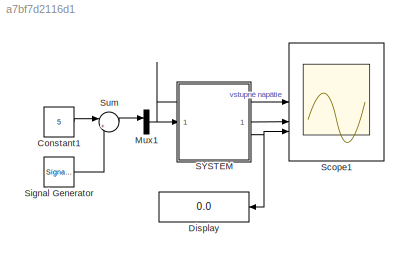
MODEL slx_a7bf7d2116d1
KIND model
CONFIG AbsTol = auto
CONFIG EnableMultiTasking = on
CONFIG FixedStep = auto
CONFIG MaxStep = auto
CONFIG MinStep = auto
CONFIG RelTol = 1e-3
CONFIG SampleTimeConstraint = Unconstrained
CONFIG SolverName = ode45
CONFIG StartTime = 0.0
CONFIG StopTime = 60
BLOCK [Constant] Constant1
  Value = 5
BLOCK [Display] Display
  Decimation = 1
  NameLocation = top
BLOCK [Mux] Mux1
  DisplayOption = bar
  Inputs = 1
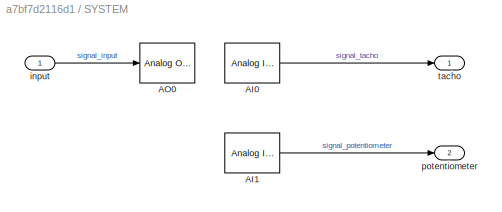
BLOCK [SubSystem] SYSTEM
BLOCK [Reference] SYSTEM/AI0  REF=sldrtlib/Analog Input
  AttributesFormatString = Advantech\nPCI-1711 [auto]
  SourceBlock = sldrtlib/Analog Input
  SourceType = Simulink Desktop Real-Time Analog Input
BLOCK [Reference] SYSTEM/AI1  REF=sldrtlib/Analog Input
  AttributesFormatString = Advantech\nPCI-1711 [auto]
  SourceBlock = sldrtlib/Analog Input
  SourceType = Simulink Desktop Real-Time Analog Input
BLOCK [Reference] SYSTEM/AO0  REF=sldrtlib/Analog Output
  AttributesFormatString = Advantech\nPCI-1711 [auto]
  SourceBlock = sldrtlib/Analog Output
  SourceType = Simulink Desktop Real-Time Analog Output
BLOCK [Inport] SYSTEM/input
BLOCK [Outport] SYSTEM/potentiometer
  Port = 2
BLOCK [Outport] SYSTEM/tacho
BLOCK [Scope] Scope1
  Floating = off
  NumInputPorts = 3
  ScopeSpecificationString = Simulink.scopes.TimeScopeBlockCfg('CurrentConfiguration', extmgr.ConfigurationSet(extmgr.Configuration('Core','General UI',true),extmgr.Configuration('Core','Source UI',true),extmgr.Configuration('Sources','WiredSimulink',true,'DataLoggingVariableName','ScopeData1','DataLoggingSaveFormat','Array','DataLoggingDecimation','1'),extmgr.Configuration('Visuals','Time Domain',true,'SerializedDisplays',{s...<+2979ch>
BLOCK [SignalGenerator] Signal Generator
  Frequency = 1/20
  WaveForm = square
BLOCK [Sum] Sum
  Inputs = |++
LINE Constant1:1 -> Sum:1
NET Mux1:1 -> SYSTEM:1, Scope1:1
LINE SYSTEM/AI0:1 -> SYSTEM/tacho:1
LINE SYSTEM/AI1:1 -> SYSTEM/potentiometer:1
LINE SYSTEM/input:1 -> SYSTEM/AO0:1
LINE SYSTEM:1 -> Scope1:2
NET SYSTEM:2 -> Display:1, Scope1:3
LINE Signal Generator:1 -> Sum:2
LINE Sum:1 -> Mux1:1
note: NET lines group one-source signal fan-out (src -> all destinations, sorted); 1:1 wires keep LINE
